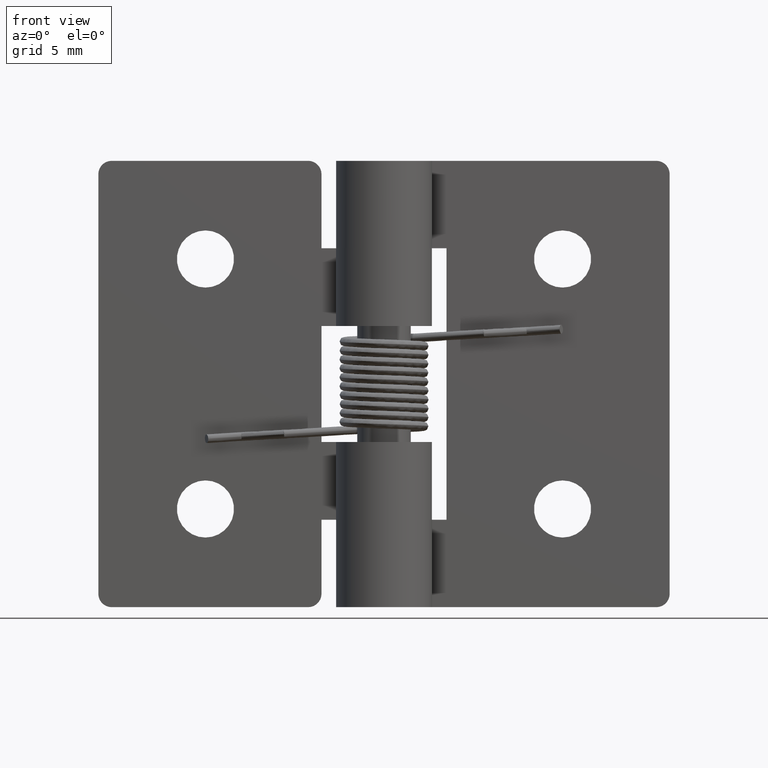
[diagram: clean part render]
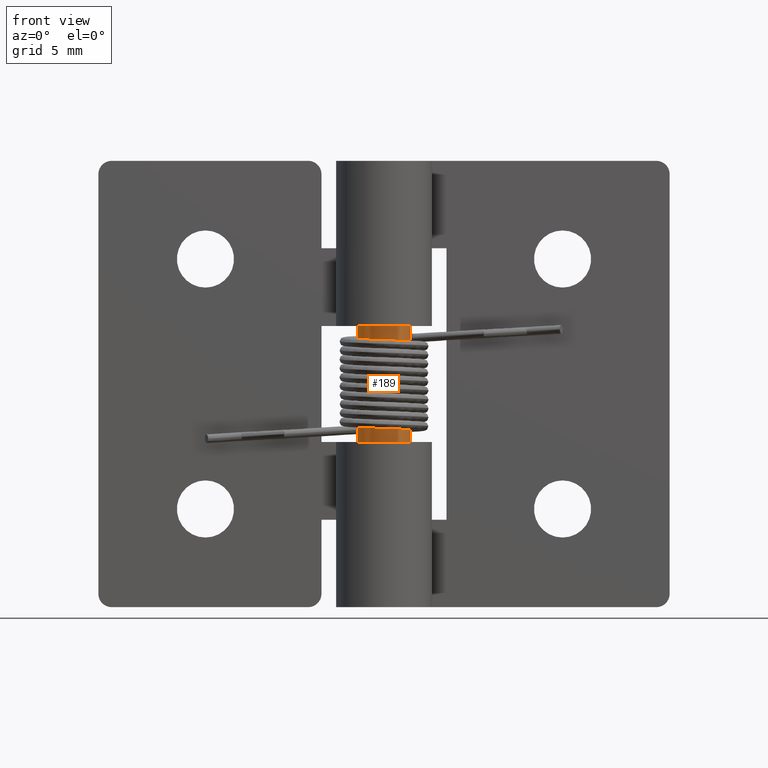
[diagram: same view with one face highlighted and labeled with its STEP entity id]
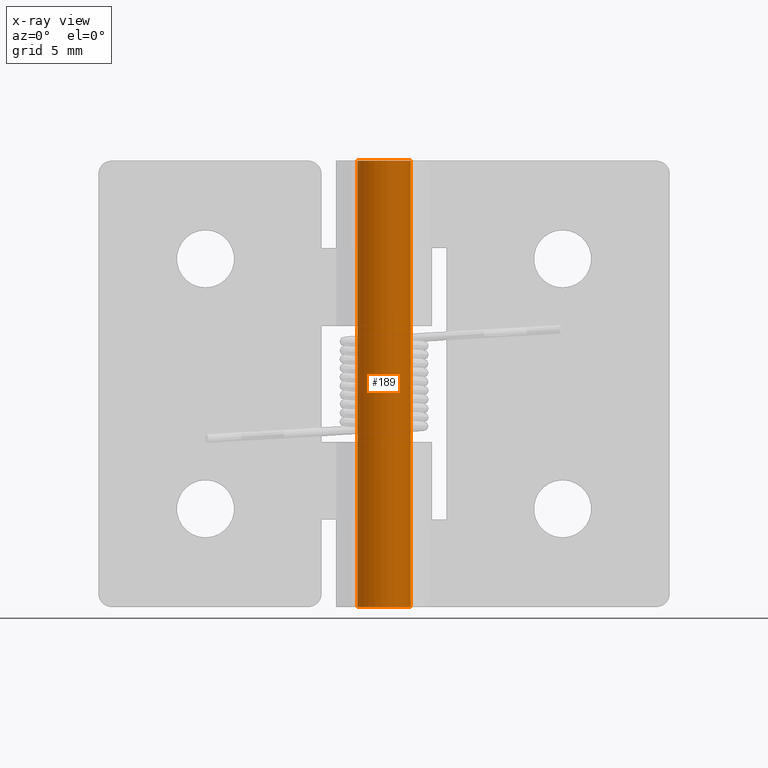
[diagram: x-ray of the same camera — body ghosted, the highlighted face saturated]
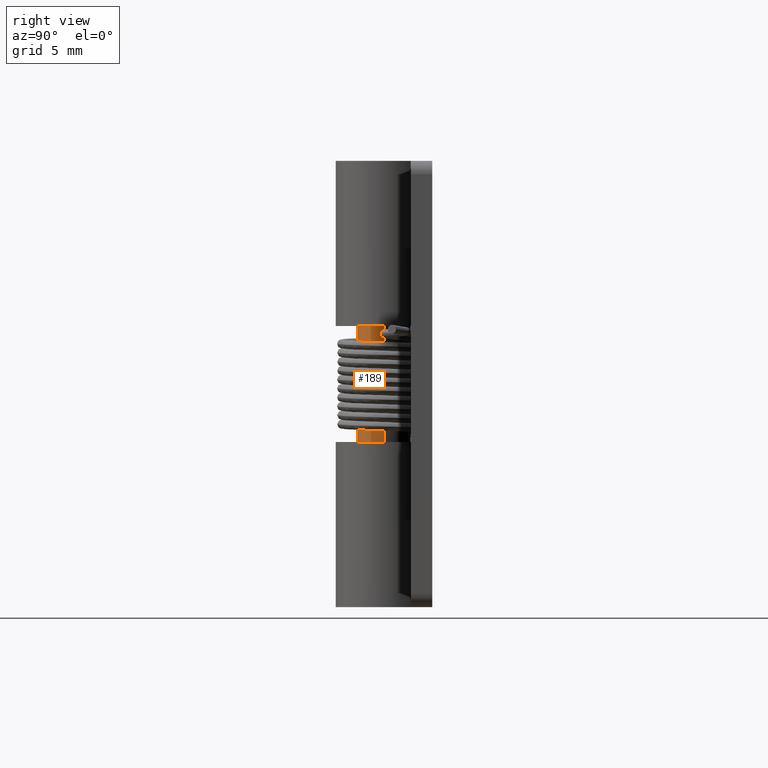
[diagram: same view with one face highlighted and labeled with its STEP entity id]
A machine part, front view. The second image highlights one B-rep face of the part: STEP entity #189.
The next image is the same camera in x-ray: the body ghosted, the highlighted face saturated — about 0% of this face is hidden behind the body in this view.
A second angle (right view) of the same face is appended — the face is thin or edge-on in the first view.
In plain terms, the highlighted cylindrical surface (edge-blend (fillet) strip) has radius 1.5 mm, axis along (0, 0, 1).
Its self-contained STEP definition (entity closure, byte-faithful):
#189=ADVANCED_FACE('',(#287),#286,.T.);
#286=CYLINDRICAL_SURFACE('',#982,1.50000000000E+00);
#287=FACE_OUTER_BOUND('',#983,.T.);
#979=CARTESIAN_POINT('',(0.00000000000E+00,0.00000000000E+00,0.00000000000E+00));
#980=DIRECTION('',(-0.00000000000E+00,-0.00000000000E+00,1.00000000000E+00));
#981=DIRECTION('',(1.00000000000E+00,-0.00000000000E+00,-0.00000000000E+00));
#982=AXIS2_PLACEMENT_3D('',#979,#980,#981);
#983=EDGE_LOOP('',(#2962,#2963,#2964,#2965));
#2962=ORIENTED_EDGE('',*,*,#3301,.F.);
#2963=ORIENTED_EDGE('',*,*,#3302,.T.);
#2964=ORIENTED_EDGE('',*,*,#3298,.T.);
#2965=ORIENTED_EDGE('',*,*,#3303,.F.);
#3298=EDGE_CURVE('',#3470,#3471,#3472,.T.);
#3301=EDGE_CURVE('',#3485,#3484,#3492,.T.);
#3302=EDGE_CURVE('',#3485,#3470,#3498,.T.);
#3303=EDGE_CURVE('',#3484,#3471,#3504,.T.);
#3470=VERTEX_POINT('',#4612);
#3471=VERTEX_POINT('',#4613);
#3472=CIRCLE('',#4617,1.50000000000E+00);
#3484=VERTEX_POINT('',#4622);
#3485=VERTEX_POINT('',#4623);
#3492=CIRCLE('',#4631,1.50000000000E+00);
#3498=(BOUNDED_CURVE() B_SPLINE_CURVE(1,(#4632,#4633),.UNSPECIFIED.,.F.,.F.) B_SPLINE_CURVE_WITH_KNOTS((2,2),(8.33333328360E-02,9.16666665505E-01),.UNSPECIFIED.) CURVE() GEOMETRIC_REPRESENTATION_ITEM() RATIONAL_B_SPLINE_CURVE((1.00000000000E+00,1.00000000000E+00)) REPRESENTATION_ITEM('') );
#3504=(BOUNDED_CURVE() B_SPLINE_CURVE(1,(#4634,#4635),.UNSPECIFIED.,.F.,.F.) B_SPLINE_CURVE_WITH_KNOTS((2,2),(8.33333333333E-02,9.16666666667E-01),.UNSPECIFIED.) CURVE() GEOMETRIC_REPRESENTATION_ITEM() RATIONAL_B_SPLINE_CURVE((7.50000000000E-01,7.50000000000E-01)) REPRESENTATION_ITEM('') );
#4612=CARTESIAN_POINT('',(1.50000000000E+00,-7.40148683083E-17,2.49999850000E+01));
#4613=CARTESIAN_POINT('',(-1.50000000000E+00,0.00000000000E+00,2.49999850000E+01));
#4614=CARTESIAN_POINT('',(0.00000000000E+00,0.00000000000E+00,2.49999850000E+01));
#4615=DIRECTION('',(-0.00000000000E+00,0.00000000000E+00,-1.00000000000E+00));
#4616=DIRECTION('',(-1.00000000000E+00,-1.22460635382E-16,0.00000000000E+00));
#4617=AXIS2_PLACEMENT_3D('',#4614,#4615,#4616);
#4622=CARTESIAN_POINT('',(-1.50000000000E+00,0.00000000000E+00,0.00000000000E+00));
#4623=CARTESIAN_POINT('',(1.50000000000E+00,-7.40148683083E-17,0.00000000000E+00));
#4628=CARTESIAN_POINT('',(0.00000000000E+00,0.00000000000E+00,0.00000000000E+00));
#4629=DIRECTION('',(-0.00000000000E+00,0.00000000000E+00,-1.00000000000E+00));
#4630=DIRECTION('',(-1.00000000000E+00,-1.22460635382E-16,0.00000000000E+00));
#4631=AXIS2_PLACEMENT_3D('',#4628,#4629,#4630);
#4632=CARTESIAN_POINT('',(1.50000000000E+00,0.00000000000E+00,-1.49211527578E-08));
#4633=CARTESIAN_POINT('',(1.50000000000E+00,0.00000000000E+00,2.49999849651E+01));
#4634=CARTESIAN_POINT('',(-1.50000000000E+00,-7.40148683083E-17,0.00000000000E+00));
#4635=CARTESIAN_POINT('',(-1.50000000000E+00,-7.40148683083E-17,2.49999850000E+01));